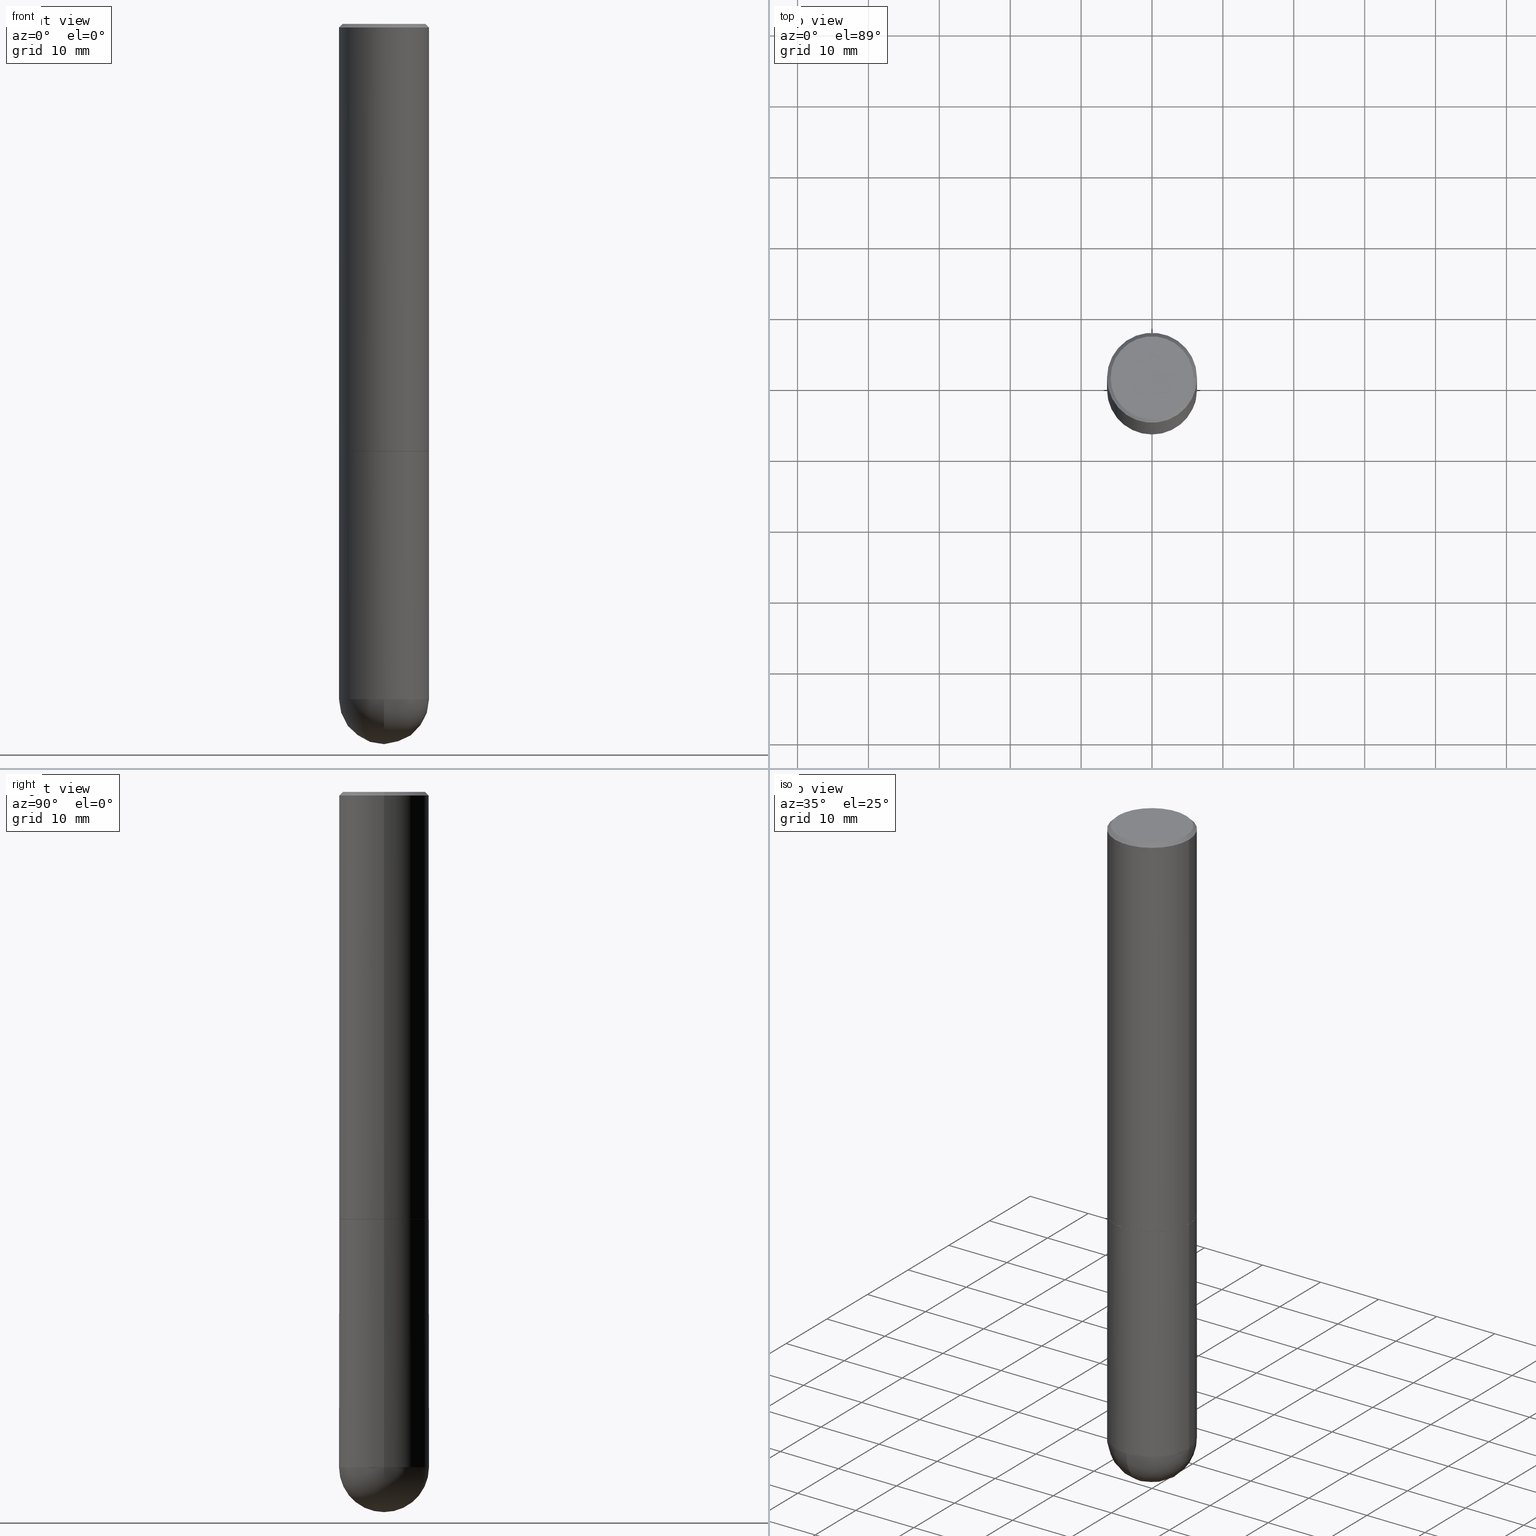
[diagram: canonical four-view strip — front | top / right | iso, engineering-drawing reading convention]
A machine part, canonical four-view strip (front | top / right | iso — engineering-drawing reading convention). The complete STEP part file that produces these views, byte-faithful:
ISO-10303-21;
HEADER;
FILE_DESCRIPTION (( 'STEP AP203' ),
    '1' );
FILE_NAME ('34925.STEP',
    '2024-02-21T18:27:17',
    ( '' ),
    ( '' ),
    'SwSTEP 2.0',
    'SolidWorks 2023',
    '' );
FILE_SCHEMA (( 'CONFIG_CONTROL_DESIGN' ));
ENDSEC;

DATA;
#1 = CIRCLE ( 'NONE', #177, 0.2500000000000002220 ) ;
#2 = AXIS2_PLACEMENT_3D ( 'NONE', #9, #136, #245 ) ;
#3 = APPROVAL_PERSON_ORGANIZATION ( #33, #147, #382 ) ;
#4 = DIRECTION ( 'NONE',  ( -2.445468806185136597E-29, 3.491481338843145583E-15, 1.000000000000000000 ) ) ;
#5 = CC_DESIGN_PERSON_AND_ORGANIZATION_ASSIGNMENT ( #155, #310, ( #85 ) ) ;
#6 = COORDINATED_UNIVERSAL_TIME_OFFSET ( 5, 0, .BEHIND. ) ;
#7 = ORIENTED_EDGE ( 'NONE', *, *, #289, .T. ) ;
#8 = VECTOR ( 'NONE', #185, 39.37007874015748143 ) ;
#9 = CARTESIAN_POINT ( 'NONE',  ( 9.170508023194262238E-29, -1.309305502066179741E-14, -3.750000000000000000 ) ) ;
#10 = ORIENTED_EDGE ( 'NONE', *, *, #368, .F. ) ;
#11 =( NAMED_UNIT ( * ) SI_UNIT ( $, .STERADIAN. ) SOLID_ANGLE_UNIT ( ) );
#12 = ORIENTED_EDGE ( 'NONE', *, *, #406, .F. ) ;
#13 = ORIENTED_EDGE ( 'NONE', *, *, #283, .T. ) ;
#14 = DATE_AND_TIME ( #226, #34 ) ;
#15 = AXIS2_PLACEMENT_3D ( 'NONE', #54, #304, #402 ) ;
#16 = VERTEX_POINT ( 'NONE', #84 ) ;
#17 = EDGE_CURVE ( 'NONE', #112, #391, #306, .T. ) ;
#18 = FACE_OUTER_BOUND ( 'NONE', #253, .T. ) ;
#19 = PLANE ( 'NONE',  #248 ) ;
#20 = CC_DESIGN_PERSON_AND_ORGANIZATION_ASSIGNMENT ( #378, #412, ( #279 ) ) ;
#21 = PLANE ( 'NONE',  #145 ) ;
#22 = AXIS2_PLACEMENT_3D ( 'NONE', #358, #287, #138 ) ;
#23 = DIRECTION ( 'NONE',  ( 1.000000000000000000, -6.982962677686262766E-15, 0.000000000000000000 ) ) ;
#24 = CARTESIAN_POINT ( 'NONE',  ( -0.2500000000000000000, -8.916304760806885668E-15, -3.750000000000000000 ) ) ;
#25 = CARTESIAN_POINT ( 'NONE',  ( 5.805542945883513814E-29, -8.288776698413627111E-15, -2.373999999999999666 ) ) ;
#26 = CONICAL_SURFACE ( 'NONE', #49, 0.2500000000000000000, 0.7853981633974467247 ) ;
#27 = CC_DESIGN_APPROVAL ( #147, ( #279 ) ) ;
#28 = DIRECTION ( 'NONE',  ( -2.445468806185136597E-29, 3.491481338843145583E-15, 1.000000000000000000 ) ) ;
#29 = DIRECTION ( 'NONE',  ( -2.445468806185136597E-29, 3.491481338843145583E-15, 1.000000000000000000 ) ) ;
#30 = DATE_AND_TIME ( #274, #44 ) ;
#31 = EDGE_CURVE ( 'NONE', #169, #326, #262, .T. ) ;
#32 = DIRECTION ( 'NONE',  ( -2.445468806185136877E-29, 3.491481338843145188E-15, 1.000000000000000000 ) ) ;
#33 = PERSON_AND_ORGANIZATION ( #316, #102 ) ;
#34 = LOCAL_TIME ( 13, 27, 17.00000000000000000, #113 ) ;
#35 = FACE_OUTER_BOUND ( 'NONE', #188, .T. ) ;
#36 = CARTESIAN_POINT ( 'NONE',  ( 0.2500000000000000000, -1.003800884917403837E-14, -2.375000000000000000 ) ) ;
#37 = VERTEX_POINT ( 'NONE', #149 ) ;
#38 = ADVANCED_FACE ( 'NONE', ( #57 ), #21, .F. ) ;
#39 =( LENGTH_UNIT ( ) NAMED_UNIT ( * ) SI_UNIT ( $, .METRE. ) );
#40 = ORIENTED_EDGE ( 'NONE', *, *, #341, .F. ) ;
#41 = CLOSED_SHELL ( 'NONE', ( #373, #163, #297, #401, #176, #63, #157, #384 ) ) ;
#42 = CIRCLE ( 'NONE', #387, 0.2500000000000000000 ) ;
#43 = FACE_OUTER_BOUND ( 'NONE', #193, .T. ) ;
#44 = LOCAL_TIME ( 13, 27, 17.00000000000000000, #6 ) ;
#45 = ORIENTED_EDGE ( 'NONE', *, *, #17, .F. ) ;
#46 = ORIENTED_EDGE ( 'NONE', *, *, #348, .F. ) ;
#47 = APPROVAL_STATUS ( 'not_yet_approved' ) ;
#48 = ORIENTED_EDGE ( 'NONE', *, *, #200, .T. ) ;
#49 = AXIS2_PLACEMENT_3D ( 'NONE', #209, #99, #339 ) ;
#50 = VERTEX_POINT ( 'NONE', #335 ) ;
#51 =( GEOMETRIC_REPRESENTATION_CONTEXT ( 3 ) GLOBAL_UNCERTAINTY_ASSIGNED_CONTEXT ( ( #196 ) ) GLOBAL_UNIT_ASSIGNED_CONTEXT ( ( #195, #290, #11 ) ) REPRESENTATION_CONTEXT ( 'NONE', 'WORKASPACE' ) );
#52 = DIRECTION ( 'NONE',  ( 6.982962677686265922E-15, 1.000000000000000000, -4.370956789862818783E-15 ) ) ;
#53 = EDGE_CURVE ( 'NONE', #394, #16, #379, .T. ) ;
#54 = CARTESIAN_POINT ( 'NONE',  ( 5.807988414689699417E-29, -8.292268179752470118E-15, -2.375000000000000000 ) ) ;
#55 = CARTESIAN_POINT ( 'NONE',  ( -0.2500000000000000000, 1.675911042644703577E-15, -0.02000000000000005593 ) ) ;
#56 = CIRCLE ( 'NONE', #141, 0.2300000000000001488 ) ;
#57 = FACE_OUTER_BOUND ( 'NONE', #161, .T. ) ;
#58 = CARTESIAN_POINT ( 'NONE',  ( 4.890937612370287172E-31, -6.982962677686310098E-17, -0.02000000000000005593 ) ) ;
#59 = DIRECTION ( 'NONE',  ( 1.000000000000000000, -6.982962677686266711E-15, 0.000000000000000000 ) ) ;
#60 = PERSON_AND_ORGANIZATION ( #316, #102 ) ;
#61 = VECTOR ( 'NONE', #228, 39.37007874015748143 ) ;
#62 = CYLINDRICAL_SURFACE ( 'NONE', #405, 0.2500000000000001110 ) ;
#63 = ADVANCED_FACE ( 'NONE', ( #18 ), #74, .T. ) ;
#64 = DIRECTION ( 'NONE',  ( -2.445468806185136597E-29, 3.491481338843145583E-15, 1.000000000000000000 ) ) ;
#65 = DATE_AND_TIME ( #124, #308 ) ;
#66 = LINE ( 'NONE', #404, #101 ) ;
#67 = SECURITY_CLASSIFICATION_LEVEL ( 'unclassified' ) ;
#68 = CIRCLE ( 'NONE', #135, 0.2489999999999999991 ) ;
#69 = ORIENTED_EDGE ( 'NONE', *, *, #289, .F. ) ;
#70 = APPLICATION_PROTOCOL_DEFINITION ( 'international standard', 'config_control_design', 1994, #267 ) ;
#71 = ORIENTED_EDGE ( 'NONE', *, *, #337, .T. ) ;
#72 = PERSON_AND_ORGANIZATION_ROLE ( 'design_owner' ) ;
#73 = ORIENTED_EDGE ( 'NONE', *, *, #200, .F. ) ;
#74 = CONICAL_SURFACE ( 'NONE', #223, 0.2489999999999999991, 0.7853981633973970977 ) ;
#75 = LENGTH_MEASURE_WITH_UNIT ( LENGTH_MEASURE( 0.02539999999999999897 ), #39 );
#76 = VERTEX_POINT ( 'NONE', #55 ) ;
#77 = CC_DESIGN_PERSON_AND_ORGANIZATION_ASSIGNMENT ( #60, #242, ( #279 ) ) ;
#78 = CARTESIAN_POINT ( 'NONE',  ( 0.2489999999999999991, -1.003102588649635236E-14, -2.375000000000000000 ) ) ;
#79 = ORIENTED_EDGE ( 'NONE', *, *, #275, .T. ) ;
#80 = COORDINATED_UNIVERSAL_TIME_OFFSET ( 5, 0, .BEHIND. ) ;
#81 = CARTESIAN_POINT ( 'NONE',  ( 5.807988414689700538E-29, -8.292268179752471696E-15, -2.375000000000000000 ) ) ;
#82 = CLOSED_SHELL ( 'NONE', ( #318, #91, #126, #38, #362 ) ) ;
#83 = EDGE_CURVE ( 'NONE', #391, #50, #114, .T. ) ;
#84 = CARTESIAN_POINT ( 'NONE',  ( -0.2500000000000000000, -8.916304760806884090E-15, -2.375000000000000000 ) ) ;
#85 = SECURITY_CLASSIFICATION ( '', '', #67 ) ;
#86 = DIRECTION ( 'NONE',  ( -2.438088387897960049E-29, 3.491481338843145188E-15, 1.000000000000000000 ) ) ;
#87 = CARTESIAN_POINT ( 'NONE',  ( 1.745740669421624462E-15, 0.2499999999999917011, -2.375000000000000888 ) ) ;
#88 = CARTESIAN_POINT ( 'NONE',  ( -0.2489999999999999991, -6.517718313361599048E-15, -2.375000000000000000 ) ) ;
#89 = VECTOR ( 'NONE', #181, 39.37007874015748143 ) ;
#90 = CC_DESIGN_SECURITY_CLASSIFICATION ( #85, ( #279 ) ) ;
#91 = ADVANCED_FACE ( 'NONE', ( #203 ), #259, .T. ) ;
#92 = CARTESIAN_POINT ( 'NONE',  ( 0.2500000000000000000, -1.243840226962870281E-14, -3.750000000000000000 ) ) ;
#93 = DIRECTION ( 'NONE',  ( 1.000000000000000000, -6.982962677686265922E-15, 4.879110437680772635E-29 ) ) ;
#94 = CARTESIAN_POINT ( 'NONE',  ( -0.2500000000000000000, 1.675911042644703577E-15, -0.02000000000000005593 ) ) ;
#95 = CC_DESIGN_DATE_AND_TIME_ASSIGNMENT ( #142, #375, ( #191 ) ) ;
#96 = AXIS2_PLACEMENT_3D ( 'NONE', #296, #396, #144 ) ;
#97 = DIRECTION ( 'NONE',  ( -0.7071067811865464625, 2.468850131082245228E-15, -0.7071067811865486830 ) ) ;
#98 = SHAPE_DEFINITION_REPRESENTATION ( #280, #170 ) ;
#99 = DIRECTION ( 'NONE',  ( 2.445468806185136597E-29, -3.491481338843145583E-15, -1.000000000000000000 ) ) ;
#100 = ORIENTED_EDGE ( 'NONE', *, *, #115, .F. ) ;
#101 = VECTOR ( 'NONE', #32, 39.37007874015748143 ) ;
#102 = ORGANIZATION ( 'UNSPECIFIED', 'UNSPECIFIED', '' ) ;
#103 = EDGE_CURVE ( 'NONE', #258, #199, #118, .T. ) ;
#104 = VERTEX_POINT ( 'NONE', #24 ) ;
#105 = MANIFOLD_SOLID_BREP ( 'Body-Move/Copy2[1]', #82 ) ;
#106 = PERSON_AND_ORGANIZATION ( #316, #102 ) ;
#107 = EDGE_LOOP ( 'NONE', ( #190, #134, #69, #73 ) ) ;
#108 = CARTESIAN_POINT ( 'NONE',  ( 0.2500000000000000000, -1.784954126219746189E-15, -0.02000000000000005593 ) ) ;
#109 = ORIENTED_EDGE ( 'NONE', *, *, #236, .T. ) ;
#110 = CONICAL_SURFACE ( 'NONE', #336, 0.2489999999999999991, 0.7853981633973970977 ) ;
#111 = DIRECTION ( 'NONE',  ( 0.000000000000000000, 0.000000000000000000, 1.000000000000000000 ) ) ;
#112 = VERTEX_POINT ( 'NONE', #88 ) ;
#113 = COORDINATED_UNIVERSAL_TIME_OFFSET ( 5, 0, .BEHIND. ) ;
#114 = LINE ( 'NONE', #298, #217 ) ;
#115 = EDGE_CURVE ( 'NONE', #16, #394, #256, .T. ) ;
#116 = SPHERICAL_SURFACE ( 'NONE', #234, 0.2500000000000001110 ) ;
#117 = DESIGN_CONTEXT ( 'detailed design', #385, 'design' ) ;
#118 = CIRCLE ( 'NONE', #286, 0.2500000000000000000 ) ;
#119 = ORIENTED_EDGE ( 'NONE', *, *, #53, .T. ) ;
#120 = DIRECTION ( 'NONE',  ( -2.445468806185136597E-29, 3.491481338843145583E-15, 1.000000000000000000 ) ) ;
#121 = ORIENTED_EDGE ( 'NONE', *, *, #329, .F. ) ;
#122 = EDGE_CURVE ( 'NONE', #258, #394, #338, .T. ) ;
#123 = DIRECTION ( 'NONE',  ( 1.000000000000000000, -6.982962677686265922E-15, 4.876176775795935793E-29 ) ) ;
#124 = CALENDAR_DATE ( 2024, 21, 2 ) ;
#125 = DIRECTION ( 'NONE',  ( -2.445468806185136597E-29, 3.491481338843145583E-15, 1.000000000000000000 ) ) ;
#126 = ADVANCED_FACE ( 'NONE', ( #403 ), #116, .T. ) ;
#127 = DIRECTION ( 'NONE',  ( 1.000000000000000000, -6.982962677686269866E-15, 0.000000000000000000 ) ) ;
#128 = COORDINATED_UNIVERSAL_TIME_OFFSET ( 5, 0, .BEHIND. ) ;
#129 = CARTESIAN_POINT ( 'NONE',  ( 5.805542945883513814E-29, -8.288776698413627111E-15, -2.373999999999999666 ) ) ;
#130 = VECTOR ( 'NONE', #97, 39.37007874015748143 ) ;
#131 = DIRECTION ( 'NONE',  ( 1.000000000000000000, -6.982962677686267499E-15, 4.876176775795936353E-29 ) ) ;
#132 = DIRECTION ( 'NONE',  ( 1.000000000000000000, -6.982962677686266711E-15, 0.000000000000000000 ) ) ;
#133 = PLANE ( 'NONE',  #295 ) ;
#134 = ORIENTED_EDGE ( 'NONE', *, *, #31, .T. ) ;
#135 = AXIS2_PLACEMENT_3D ( 'NONE', #211, #64, #127 ) ;
#136 = DIRECTION ( 'NONE',  ( -2.445468806185136597E-29, 3.491481338843145583E-15, 1.000000000000000000 ) ) ;
#137 = EDGE_LOOP ( 'NONE', ( #12, #10, #323, #291 ) ) ;
#138 = DIRECTION ( 'NONE',  ( 1.000000000000000000, -6.982962677686266711E-15, 4.876176775795935793E-29 ) ) ;
#139 = ORIENTED_EDGE ( 'NONE', *, *, #173, .T. ) ;
#140 = EDGE_LOOP ( 'NONE', ( #139, #146, #172, #361 ) ) ;
#141 = AXIS2_PLACEMENT_3D ( 'NONE', #220, #281, #325 ) ;
#142 = DATE_AND_TIME ( #168, #332 ) ;
#143 = ORIENTED_EDGE ( 'NONE', *, *, #103, .T. ) ;
#144 = DIRECTION ( 'NONE',  ( -7.105427357601001859E-15, -1.000000000000000000, 0.000000000000000000 ) ) ;
#145 = AXIS2_PLACEMENT_3D ( 'NONE', #87, #265, #205 ) ;
#146 = ORIENTED_EDGE ( 'NONE', *, *, #329, .T. ) ;
#147 = APPROVAL ( #408, 'UNSPECIFIED' ) ;
#148 = DIRECTION ( 'NONE',  ( 1.000000000000000000, -6.982962677686270655E-15, 0.000000000000000000 ) ) ;
#149 = CARTESIAN_POINT ( 'NONE',  ( 0.2300000000000001488, -1.681434332853599997E-15, -1.365923996832016731E-16 ) ) ;
#150 = CALENDAR_DATE ( 2024, 21, 2 ) ;
#151 = CYLINDRICAL_SURFACE ( 'NONE', #393, 0.2500000000000001110 ) ;
#152 = AXIS2_PLACEMENT_3D ( 'NONE', #353, #166, #246 ) ;
#153 = CARTESIAN_POINT ( 'NONE',  ( 9.170508023194262238E-29, -1.309305502066179741E-14, -3.750000000000000000 ) ) ;
#154 = DIRECTION ( 'NONE',  ( 1.000000000000000000, -6.982962677686264344E-15, 0.000000000000000000 ) ) ;
#155 = PERSON_AND_ORGANIZATION ( #316, #102 ) ;
#156 = LINE ( 'NONE', #268, #8 ) ;
#157 = ADVANCED_FACE ( 'NONE', ( #174 ), #19, .F. ) ;
#158 = MECHANICAL_CONTEXT ( 'NONE', #267, 'mechanical' ) ;
#159 = ORIENTED_EDGE ( 'NONE', *, *, #115, .T. ) ;
#160 = DIRECTION ( 'NONE',  ( -2.445468806185136597E-29, 3.491481338843145583E-15, 1.000000000000000000 ) ) ;
#161 = EDGE_LOOP ( 'NONE', ( #119, #159 ) ) ;
#162 = CIRCLE ( 'NONE', #210, 0.2500000000000001110 ) ;
#163 = ADVANCED_FACE ( 'NONE', ( #381 ), #151, .T. ) ;
#164 = LINE ( 'NONE', #108, #349 ) ;
#165 = ORIENTED_EDGE ( 'NONE', *, *, #230, .T. ) ;
#166 = DIRECTION ( 'NONE',  ( 2.445468806185136597E-29, -3.491481338843145583E-15, -1.000000000000000000 ) ) ;
#167 = ORIENTED_EDGE ( 'NONE', *, *, #303, .F. ) ;
#168 = CALENDAR_DATE ( 2024, 21, 2 ) ;
#169 = VERTEX_POINT ( 'NONE', #235 ) ;
#170 = ADVANCED_BREP_SHAPE_REPRESENTATION ( '34925', ( #105, #370, #264 ), #51 ) ;
#171 = CONICAL_SURFACE ( 'NONE', #152, 0.2500000000000000000, 0.7853981633974467247 ) ;
#172 = ORIENTED_EDGE ( 'NONE', *, *, #397, .F. ) ;
#173 = EDGE_CURVE ( 'NONE', #50, #399, #301, .T. ) ;
#174 = FACE_OUTER_BOUND ( 'NONE', #179, .T. ) ;
#175 = CARTESIAN_POINT ( 'NONE',  ( 8.839388245280375991E-29, -1.356723738880184771E-14, -3.750000000000000000 ) ) ;
#176 = ADVANCED_FACE ( 'NONE', ( #35 ), #62, .T. ) ;
#177 = AXIS2_PLACEMENT_3D ( 'NONE', #25, #29, #154 ) ;
#178 = AXIS2_PLACEMENT_3D ( 'NONE', #153, #4, #409 ) ;
#179 = EDGE_LOOP ( 'NONE', ( #330, #45 ) ) ;
#180 = CARTESIAN_POINT ( 'NONE',  ( 5.807988414689700538E-29, -8.292268179752471696E-15, -2.375000000000000000 ) ) ;
#181 = DIRECTION ( 'NONE',  ( -0.7071067811865112684, 7.493145998870223209E-15, 0.7071067811865837660 ) ) ;
#182 = APPROVAL_DATE_TIME ( #342, #147 ) ;
#183 = FACE_OUTER_BOUND ( 'NONE', #282, .T. ) ;
#184 = CARTESIAN_POINT ( 'NONE',  ( 0.000000000000000000, 0.000000000000000000, 0.000000000000000000 ) ) ;
#185 = DIRECTION ( 'NONE',  ( -2.445468806185136877E-29, 3.491481338843145188E-15, 1.000000000000000000 ) ) ;
#186 = DATE_TIME_ROLE ( 'classification_date' ) ;
#187 = DIRECTION ( 'NONE',  ( -2.445468806185136597E-29, 3.491481338843145583E-15, 1.000000000000000000 ) ) ;
#188 = EDGE_LOOP ( 'NONE', ( #121, #13, #71, #46 ) ) ;
#189 = FACE_OUTER_BOUND ( 'NONE', #328, .T. ) ;
#190 = ORIENTED_EDGE ( 'NONE', *, *, #275, .F. ) ;
#191 = PRODUCT_DEFINITION ( 'UNKNOWN', '', #279, #117 ) ;
#192 = APPLICATION_PROTOCOL_DEFINITION ( 'international standard', 'config_control_design', 1994, #385 ) ;
#193 = EDGE_LOOP ( 'NONE', ( #40, #7, #221, #225, #100 ) ) ;
#194 = LOCAL_TIME ( 13, 27, 17.00000000000000000, #272 ) ;
#195 =( CONVERSION_BASED_UNIT ( 'INCH', #75 ) LENGTH_UNIT ( ) NAMED_UNIT ( #376 ) );
#196 = UNCERTAINTY_MEASURE_WITH_UNIT (LENGTH_MEASURE( 1.000000000000000082E-05 ), #195, 'distance_accuracy_value', 'NONE');
#197 = ORIENTED_EDGE ( 'NONE', *, *, #368, .T. ) ;
#198 = CARTESIAN_POINT ( 'NONE',  ( 5.807988414689700538E-29, -8.292268179752471696E-15, -2.375000000000000000 ) ) ;
#199 = VERTEX_POINT ( 'NONE', #244 ) ;
#200 = EDGE_CURVE ( 'NONE', #199, #104, #343, .T. ) ;
#201 = PERSON_AND_ORGANIZATION ( #316, #102 ) ;
#202 = ORIENTED_EDGE ( 'NONE', *, *, #122, .F. ) ;
#203 = FACE_OUTER_BOUND ( 'NONE', #107, .T. ) ;
#204 = DIRECTION ( 'NONE',  ( 6.982962677686265922E-15, 1.000000000000000000, -4.370956789862818783E-15 ) ) ;
#205 = DIRECTION ( 'NONE',  ( -1.000000000000000000, 6.982962677686265922E-15, -4.876176775795935793E-29 ) ) ;
#206 = CARTESIAN_POINT ( 'NONE',  ( 9.170508023194262238E-29, -1.309305502066179741E-14, -3.750000000000000000 ) ) ;
#207 = CARTESIAN_POINT ( 'NONE',  ( 9.170508023194262238E-29, -1.309305502066179741E-14, -3.750000000000000000 ) ) ;
#208 = DIRECTION ( 'NONE',  ( -2.445468806185136597E-29, 3.491481338843145583E-15, 1.000000000000000000 ) ) ;
#209 = CARTESIAN_POINT ( 'NONE',  ( 4.890937612370287172E-31, -6.982962677686310098E-17, -0.02000000000000005593 ) ) ;
#210 = AXIS2_PLACEMENT_3D ( 'NONE', #312, #238, #240 ) ;
#211 = CARTESIAN_POINT ( 'NONE',  ( 5.807988414689700538E-29, -8.292268179752471696E-15, -2.375000000000000000 ) ) ;
#212 = PERSON_AND_ORGANIZATION ( #316, #102 ) ;
#213 = CC_DESIGN_PERSON_AND_ORGANIZATION_ASSIGNMENT ( #360, #257, ( #191 ) ) ;
#214 = DIRECTION ( 'NONE',  ( -2.445468806185136877E-29, 3.491481338843145188E-15, 1.000000000000000000 ) ) ;
#215 = DIRECTION ( 'NONE',  ( 1.000000000000000000, 0.000000000000000000, 0.000000000000000000 ) ) ;
#216 = ORIENTED_EDGE ( 'NONE', *, *, #283, .F. ) ;
#217 = VECTOR ( 'NONE', #232, 39.37007874015748143 ) ;
#218 = CARTESIAN_POINT ( 'NONE',  ( 0.000000000000000000, 0.000000000000000000, 0.000000000000000000 ) ) ;
#219 = EDGE_LOOP ( 'NONE', ( #247, #222, #288, #167 ) ) ;
#220 = CARTESIAN_POINT ( 'NONE',  ( 3.340324525872703422E-45, -4.769098145217431040E-31, -1.365923996832131609E-16 ) ) ;
#221 = ORIENTED_EDGE ( 'NONE', *, *, #355, .T. ) ;
#222 = ORIENTED_EDGE ( 'NONE', *, *, #406, .T. ) ;
#223 = AXIS2_PLACEMENT_3D ( 'NONE', #81, #231, #233 ) ;
#224 = DIRECTION ( 'NONE',  ( -2.445468806185136597E-29, 3.491481338843145583E-15, 1.000000000000000000 ) ) ;
#225 = ORIENTED_EDGE ( 'NONE', *, *, #122, .T. ) ;
#226 = CALENDAR_DATE ( 2024, 21, 2 ) ;
#227 = CARTESIAN_POINT ( 'NONE',  ( 5.807988414689699417E-29, -8.292268179752470118E-15, -2.375000000000000000 ) ) ;
#228 = DIRECTION ( 'NONE',  ( -2.445468806185136877E-29, 3.491481338843145188E-15, 1.000000000000000000 ) ) ;
#229 = AXIS2_PLACEMENT_3D ( 'NONE', #129, #187, #273 ) ;
#230 = EDGE_CURVE ( 'NONE', #112, #399, #377, .T. ) ;
#231 = DIRECTION ( 'NONE',  ( -2.445468806185136597E-29, 3.491481338843145583E-15, 1.000000000000000000 ) ) ;
#232 = DIRECTION ( 'NONE',  ( 0.7071067811865112684, -2.468850131081876830E-15, 0.7071067811865837660 ) ) ;
#233 = DIRECTION ( 'NONE',  ( 1.000000000000000000, -6.982962677686269866E-15, 0.000000000000000000 ) ) ;
#234 = AXIS2_PLACEMENT_3D ( 'NONE', #363, #333, #52 ) ;
#235 = CARTESIAN_POINT ( 'NONE',  ( 9.461445025441403338E-29, -1.442479963852329389E-14, -4.000000000000000888 ) ) ;
#236 = EDGE_CURVE ( 'NONE', #391, #112, #68, .T. ) ;
#237 = CARTESIAN_POINT ( 'NONE',  ( -1.776356839400160732E-15, -0.2500000000000133782, -3.749999999999999112 ) ) ;
#238 = DIRECTION ( 'NONE',  ( 1.000000000000000000, -6.982962677686265922E-15, 4.883557194083112340E-29 ) ) ;
#239 = APPROVAL_DATE_TIME ( #65, #300 ) ;
#240 = DIRECTION ( 'NONE',  ( 6.982962677686266711E-15, 1.000000000000000000, 0.000000000000000000 ) ) ;
#241 = AXIS2_PLACEMENT_3D ( 'NONE', #322, #160, #132 ) ;
#242 = PERSON_AND_ORGANIZATION_ROLE ( 'design_supplier' ) ;
#243 = CC_DESIGN_APPROVAL ( #300, ( #85 ) ) ;
#244 = CARTESIAN_POINT ( 'NONE',  ( 1.745740669421657002E-15, 0.2499999999999867606, -3.750000000000001332 ) ) ;
#245 = DIRECTION ( 'NONE',  ( 1.000000000000000000, -6.982962677686262766E-15, 0.000000000000000000 ) ) ;
#246 = DIRECTION ( 'NONE',  ( -1.000000000000000000, 6.982962677686266711E-15, 0.000000000000000000 ) ) ;
#247 = ORIENTED_EDGE ( 'NONE', *, *, #269, .F. ) ;
#248 = AXIS2_PLACEMENT_3D ( 'NONE', #261, #86, #123 ) ;
#249 = CC_DESIGN_APPROVAL ( #311, ( #191 ) ) ;
#250 = CYLINDRICAL_SURFACE ( 'NONE', #22, 0.2500000000000000000 ) ;
#251 = ORIENTED_EDGE ( 'NONE', *, *, #31, .F. ) ;
#252 = FACE_OUTER_BOUND ( 'NONE', #359, .T. ) ;
#253 = EDGE_LOOP ( 'NONE', ( #299, #293, #356, #216 ) ) ;
#254 = ORIENTED_EDGE ( 'NONE', *, *, #53, .F. ) ;
#255 = CC_DESIGN_DATE_AND_TIME_ASSIGNMENT ( #30, #186, ( #85 ) ) ;
#256 = CIRCLE ( 'NONE', #365, 0.2500000000000000000 ) ;
#257 = PERSON_AND_ORGANIZATION_ROLE ( 'creator' ) ;
#258 = VERTEX_POINT ( 'NONE', #92 ) ;
#259 = SPHERICAL_SURFACE ( 'NONE', #307, 0.2500000000000001110 ) ;
#260 = CC_DESIGN_PERSON_AND_ORGANIZATION_ASSIGNMENT ( #106, #72, ( #277 ) ) ;
#261 = CARTESIAN_POINT ( 'NONE',  ( 5.807988414689700538E-29, -8.292268179752471696E-15, -2.375000000000000000 ) ) ;
#262 = CIRCLE ( 'NONE', #96, 0.2500000000000001110 ) ;
#263 = AXIS2_PLACEMENT_3D ( 'NONE', #58, #340, #59 ) ;
#264 = AXIS2_PLACEMENT_3D ( 'NONE', #218, #111, #215 ) ;
#265 = DIRECTION ( 'NONE',  ( 2.438088387897960049E-29, -3.491481338843145188E-15, -1.000000000000000000 ) ) ;
#266 = CARTESIAN_POINT ( 'NONE',  ( 0.2500000000000000000, -1.745740669421566678E-15, 1.219044193948983948E-29 ) ) ;
#267 = APPLICATION_CONTEXT ( 'configuration controlled 3d designs of mechanical parts and assemblies' ) ;
#268 = CARTESIAN_POINT ( 'NONE',  ( -0.2500000000000001110, 1.776356839400251254E-15, -1.229733772563727146E-29 ) ) ;
#269 = EDGE_CURVE ( 'NONE', #37, #352, #400, .T. ) ;
#270 = AXIS2_PLACEMENT_3D ( 'NONE', #344, #208, #411 ) ;
#271 = FACE_OUTER_BOUND ( 'NONE', #219, .T. ) ;
#272 = COORDINATED_UNIVERSAL_TIME_OFFSET ( 5, 0, .BEHIND. ) ;
#273 = DIRECTION ( 'NONE',  ( 1.000000000000000000, -6.982962677686264344E-15, 0.000000000000000000 ) ) ;
#274 = CALENDAR_DATE ( 2024, 21, 2 ) ;
#275 = EDGE_CURVE ( 'NONE', #169, #199, #162, .T. ) ;
#276 = CYLINDRICAL_SURFACE ( 'NONE', #270, 0.2500000000000000000 ) ;
#277 = PRODUCT ( '34925', '34925', '', ( #158 ) ) ;
#278 = DIRECTION ( 'NONE',  ( 1.000000000000000000, -6.982962677686267499E-15, 4.876176775795936353E-29 ) ) ;
#279 = PRODUCT_DEFINITION_FORMATION_WITH_SPECIFIED_SOURCE ( 'ANY', '', #277, .NOT_KNOWN. ) ;
#280 = PRODUCT_DEFINITION_SHAPE ( 'NONE', 'NONE',  #191 ) ;
#281 = DIRECTION ( 'NONE',  ( -2.445468806185136597E-29, 3.491481338843145583E-15, 1.000000000000000000 ) ) ;
#282 = EDGE_LOOP ( 'NONE', ( #48, #334, #254, #202, #143 ) ) ;
#283 = EDGE_CURVE ( 'NONE', #399, #50, #1, .T. ) ;
#284 = CARTESIAN_POINT ( 'NONE',  ( -0.2500000000000002220, -2.402946323194990795E-15, -2.373999999999999666 ) ) ;
#285 = VERTEX_POINT ( 'NONE', #374 ) ;
#286 = AXIS2_PLACEMENT_3D ( 'NONE', #206, #369, #23 ) ;
#287 = DIRECTION ( 'NONE',  ( -2.445468806185136597E-29, 3.491481338843145583E-15, 1.000000000000000000 ) ) ;
#288 = ORIENTED_EDGE ( 'NONE', *, *, #397, .T. ) ;
#289 = EDGE_CURVE ( 'NONE', #104, #326, #42, .T. ) ;
#290 =( NAMED_UNIT ( * ) PLANE_ANGLE_UNIT ( ) SI_UNIT ( $, .RADIAN. ) );
#291 = ORIENTED_EDGE ( 'NONE', *, *, #348, .T. ) ;
#292 = APPROVAL_ROLE ( '' ) ;
#293 = ORIENTED_EDGE ( 'NONE', *, *, #17, .T. ) ;
#294 = PRODUCT_RELATED_PRODUCT_CATEGORY ( 'detail', '', ( #277 ) ) ;
#295 = AXIS2_PLACEMENT_3D ( 'NONE', #350, #390, #392 ) ;
#296 = CARTESIAN_POINT ( 'NONE',  ( 8.839388245280375991E-29, -1.356723738880184771E-14, -3.750000000000000000 ) ) ;
#297 = ADVANCED_FACE ( 'NONE', ( #271 ), #26, .T. ) ;
#298 = CARTESIAN_POINT ( 'NONE',  ( 0.2489999999999999991, -1.003102588649635236E-14, -2.375000000000000000 ) ) ;
#299 = ORIENTED_EDGE ( 'NONE', *, *, #230, .F. ) ;
#300 = APPROVAL ( #346, 'UNSPECIFIED' ) ;
#301 = CIRCLE ( 'NONE', #229, 0.2500000000000002220 ) ;
#302 = DIRECTION ( 'NONE',  ( -1.000000000000000000, 6.982962677686265922E-15, -4.883557194083113462E-29 ) ) ;
#303 = EDGE_CURVE ( 'NONE', #352, #76, #345, .T. ) ;
#304 = DIRECTION ( 'NONE',  ( -2.445468806185136597E-29, 3.491481338843145583E-15, 1.000000000000000000 ) ) ;
#305 = CARTESIAN_POINT ( 'NONE',  ( -0.2489999999999999991, -6.523016767709821450E-15, -2.375000000000000000 ) ) ;
#306 = CIRCLE ( 'NONE', #364, 0.2489999999999999991 ) ;
#307 = AXIS2_PLACEMENT_3D ( 'NONE', #175, #302, #204 ) ;
#308 = LOCAL_TIME ( 13, 27, 17.00000000000000000, #128 ) ;
#309 = DIRECTION ( 'NONE',  ( -2.445468806185136597E-29, 3.491481338843145583E-15, 1.000000000000000000 ) ) ;
#310 = PERSON_AND_ORGANIZATION_ROLE ( 'classification_officer' ) ;
#311 = APPROVAL ( #47, 'UNSPECIFIED' ) ;
#312 = CARTESIAN_POINT ( 'NONE',  ( 8.839388245280375991E-29, -1.356723738880184771E-14, -3.750000000000000000 ) ) ;
#313 = CARTESIAN_POINT ( 'NONE',  ( 0.2500000000000001110, -1.745740669421567664E-15, 1.219044193948984649E-29 ) ) ;
#314 = CIRCLE ( 'NONE', #263, 0.2500000000000000000 ) ;
#315 = LINE ( 'NONE', #313, #324 ) ;
#316 = PERSON ( 'UNSPECIFIED', 'UNSPECIFIED', 'UNSPECIFIED', ('UNSPECIFIED'), ('UNSPECIFIED'), ('UNSPECIFIED') ) ;
#317 = CARTESIAN_POINT ( 'NONE',  ( -0.2300000000000001488, 1.640996229256272716E-15, -1.365923996832245008E-16 ) ) ;
#318 = ADVANCED_FACE ( 'NONE', ( #183 ), #276, .T. ) ;
#319 = ORIENTED_EDGE ( 'NONE', *, *, #83, .F. ) ;
#320 = DIRECTION ( 'NONE',  ( 1.000000000000000000, -6.982962677686269866E-15, 0.000000000000000000 ) ) ;
#321 = EDGE_LOOP ( 'NONE', ( #251, #79, #389, #354 ) ) ;
#322 = CARTESIAN_POINT ( 'NONE',  ( 4.890937612370287172E-31, -6.982962677686310098E-17, -0.02000000000000005593 ) ) ;
#323 = ORIENTED_EDGE ( 'NONE', *, *, #303, .T. ) ;
#324 = VECTOR ( 'NONE', #214, 39.37007874015748143 ) ;
#325 = DIRECTION ( 'NONE',  ( 1.000000000000000000, -6.982962677686265922E-15, 4.879110437680772635E-29 ) ) ;
#326 = VERTEX_POINT ( 'NONE', #237 ) ;
#327 = DIRECTION ( 'NONE',  ( 0.7071067811865464625, -7.319954787623252890E-15, -0.7071067811865486830 ) ) ;
#328 = EDGE_LOOP ( 'NONE', ( #197, #351 ) ) ;
#329 = EDGE_CURVE ( 'NONE', #399, #76, #156, .T. ) ;
#330 = ORIENTED_EDGE ( 'NONE', *, *, #236, .F. ) ;
#331 = CIRCLE ( 'NONE', #241, 0.2500000000000000000 ) ;
#332 = LOCAL_TIME ( 13, 27, 17.00000000000000000, #80 ) ;
#333 = DIRECTION ( 'NONE',  ( -1.000000000000000000, 6.982962677686265922E-15, -4.883557194083113462E-29 ) ) ;
#334 = ORIENTED_EDGE ( 'NONE', *, *, #341, .T. ) ;
#335 = CARTESIAN_POINT ( 'NONE',  ( 0.2500000000000002220, -1.003451736783519537E-14, -2.373999999999999666 ) ) ;
#336 = AXIS2_PLACEMENT_3D ( 'NONE', #198, #224, #320 ) ;
#337 = EDGE_CURVE ( 'NONE', #50, #285, #315, .T. ) ;
#338 = LINE ( 'NONE', #266, #61 ) ;
#339 = DIRECTION ( 'NONE',  ( -1.000000000000000000, 6.982962677686266711E-15, 0.000000000000000000 ) ) ;
#340 = DIRECTION ( 'NONE',  ( -2.445468806185136597E-29, 3.491481338843145583E-15, 1.000000000000000000 ) ) ;
#341 = EDGE_CURVE ( 'NONE', #104, #16, #66, .T. ) ;
#342 = DATE_AND_TIME ( #150, #194 ) ;
#343 = CIRCLE ( 'NONE', #178, 0.2500000000000000000 ) ;
#344 = CARTESIAN_POINT ( 'NONE',  ( 0.000000000000000000, 0.000000000000000000, 0.000000000000000000 ) ) ;
#345 = LINE ( 'NONE', #94, #130 ) ;
#346 = APPROVAL_STATUS ( 'not_yet_approved' ) ;
#347 = CARTESIAN_POINT ( 'NONE',  ( 0.000000000000000000, 0.000000000000000000, 0.000000000000000000 ) ) ;
#348 = EDGE_CURVE ( 'NONE', #76, #285, #314, .T. ) ;
#349 = VECTOR ( 'NONE', #327, 39.37007874015748143 ) ;
#350 = CARTESIAN_POINT ( 'NONE',  ( 1.606081415867842251E-15, 0.2300000000000001488, -8.713369077755306147E-16 ) ) ;
#351 = ORIENTED_EDGE ( 'NONE', *, *, #269, .T. ) ;
#352 = VERTEX_POINT ( 'NONE', #317 ) ;
#353 = CARTESIAN_POINT ( 'NONE',  ( 4.890937612370287172E-31, -6.982962677686310098E-17, -0.02000000000000005593 ) ) ;
#354 = ORIENTED_EDGE ( 'NONE', *, *, #355, .F. ) ;
#355 = EDGE_CURVE ( 'NONE', #326, #258, #380, .T. ) ;
#356 = ORIENTED_EDGE ( 'NONE', *, *, #83, .T. ) ;
#357 = APPROVAL_PERSON_ORGANIZATION ( #212, #300, #410 ) ;
#358 = CARTESIAN_POINT ( 'NONE',  ( 0.000000000000000000, 0.000000000000000000, 0.000000000000000000 ) ) ;
#359 = EDGE_LOOP ( 'NONE', ( #109, #165, #388, #319 ) ) ;
#360 = PERSON_AND_ORGANIZATION ( #316, #102 ) ;
#361 = ORIENTED_EDGE ( 'NONE', *, *, #337, .F. ) ;
#362 = ADVANCED_FACE ( 'NONE', ( #43 ), #250, .T. ) ;
#363 = CARTESIAN_POINT ( 'NONE',  ( 8.839388245280375991E-29, -1.356723738880184771E-14, -3.750000000000000000 ) ) ;
#364 = AXIS2_PLACEMENT_3D ( 'NONE', #180, #120, #367 ) ;
#365 = AXIS2_PLACEMENT_3D ( 'NONE', #227, #398, #148 ) ;
#366 = APPROVAL_PERSON_ORGANIZATION ( #201, #311, #292 ) ;
#367 = DIRECTION ( 'NONE',  ( 1.000000000000000000, -6.982962677686269866E-15, 0.000000000000000000 ) ) ;
#368 = EDGE_CURVE ( 'NONE', #352, #37, #56, .T. ) ;
#369 = DIRECTION ( 'NONE',  ( -2.445468806185136597E-29, 3.491481338843145583E-15, 1.000000000000000000 ) ) ;
#370 = MANIFOLD_SOLID_BREP ( 'Body-Move/Copy2[2]', #41 ) ;
#371 = AXIS2_PLACEMENT_3D ( 'NONE', #372, #309, #93 ) ;
#372 = CARTESIAN_POINT ( 'NONE',  ( 3.340324525872703422E-45, -4.769098145217431040E-31, -1.365923996832131609E-16 ) ) ;
#373 = ADVANCED_FACE ( 'NONE', ( #252 ), #110, .T. ) ;
#374 = CARTESIAN_POINT ( 'NONE',  ( 0.2500000000000000000, -1.784954126219746189E-15, -0.02000000000000005593 ) ) ;
#375 = DATE_TIME_ROLE ( 'creation_date' ) ;
#376 = DIMENSIONAL_EXPONENTS ( 1.000000000000000000, 0.000000000000000000, 0.000000000000000000, 0.000000000000000000, 0.000000000000000000, 0.000000000000000000, 0.000000000000000000 ) ;
#377 = LINE ( 'NONE', #305, #89 ) ;
#378 = PERSON_AND_ORGANIZATION ( #316, #102 ) ;
#379 = CIRCLE ( 'NONE', #15, 0.2500000000000000000 ) ;
#380 = CIRCLE ( 'NONE', #2, 0.2500000000000000000 ) ;
#381 = FACE_OUTER_BOUND ( 'NONE', #140, .T. ) ;
#382 = APPROVAL_ROLE ( '' ) ;
#383 = DIRECTION ( 'NONE',  ( 1.000000000000000000, -6.982962677686262766E-15, 0.000000000000000000 ) ) ;
#384 = ADVANCED_FACE ( 'NONE', ( #189 ), #133, .F. ) ;
#385 = APPLICATION_CONTEXT ( 'configuration controlled 3d designs of mechanical parts and assemblies' ) ;
#386 = FACE_OUTER_BOUND ( 'NONE', #137, .T. ) ;
#387 = AXIS2_PLACEMENT_3D ( 'NONE', #207, #28, #383 ) ;
#388 = ORIENTED_EDGE ( 'NONE', *, *, #173, .F. ) ;
#389 = ORIENTED_EDGE ( 'NONE', *, *, #103, .F. ) ;
#390 = DIRECTION ( 'NONE',  ( 2.438088387897960049E-29, -3.491481338843145188E-15, -1.000000000000000000 ) ) ;
#391 = VERTEX_POINT ( 'NONE', #78 ) ;
#392 = DIRECTION ( 'NONE',  ( -1.000000000000000000, 6.982962677686265922E-15, -4.876176775795935793E-29 ) ) ;
#393 = AXIS2_PLACEMENT_3D ( 'NONE', #184, #125, #131 ) ;
#394 = VERTEX_POINT ( 'NONE', #36 ) ;
#395 = APPROVAL_DATE_TIME ( #14, #311 ) ;
#396 = DIRECTION ( 'NONE',  ( -1.000000000000000000, 7.105427357601001070E-15, -4.926315508542082329E-29 ) ) ;
#397 = EDGE_CURVE ( 'NONE', #285, #76, #331, .T. ) ;
#398 = DIRECTION ( 'NONE',  ( -2.445468806185136597E-29, 3.491481338843145583E-15, 1.000000000000000000 ) ) ;
#399 = VERTEX_POINT ( 'NONE', #284 ) ;
#400 = CIRCLE ( 'NONE', #371, 0.2300000000000001488 ) ;
#401 = ADVANCED_FACE ( 'NONE', ( #386 ), #171, .T. ) ;
#402 = DIRECTION ( 'NONE',  ( 1.000000000000000000, -6.982962677686270655E-15, 0.000000000000000000 ) ) ;
#403 = FACE_OUTER_BOUND ( 'NONE', #321, .T. ) ;
#404 = CARTESIAN_POINT ( 'NONE',  ( -0.2500000000000000000, 1.776356839400250465E-15, -1.229733772563726445E-29 ) ) ;
#405 = AXIS2_PLACEMENT_3D ( 'NONE', #347, #407, #278 ) ;
#406 = EDGE_CURVE ( 'NONE', #37, #285, #164, .T. ) ;
#407 = DIRECTION ( 'NONE',  ( -2.445468806185136597E-29, 3.491481338843145583E-15, 1.000000000000000000 ) ) ;
#408 = APPROVAL_STATUS ( 'not_yet_approved' ) ;
#409 = DIRECTION ( 'NONE',  ( 1.000000000000000000, -6.982962677686262766E-15, 0.000000000000000000 ) ) ;
#410 = APPROVAL_ROLE ( '' ) ;
#411 = DIRECTION ( 'NONE',  ( 1.000000000000000000, -6.982962677686266711E-15, 4.876176775795935793E-29 ) ) ;
#412 = PERSON_AND_ORGANIZATION_ROLE ( 'creator' ) ;
ENDSEC;
END-ISO-10303-21;
